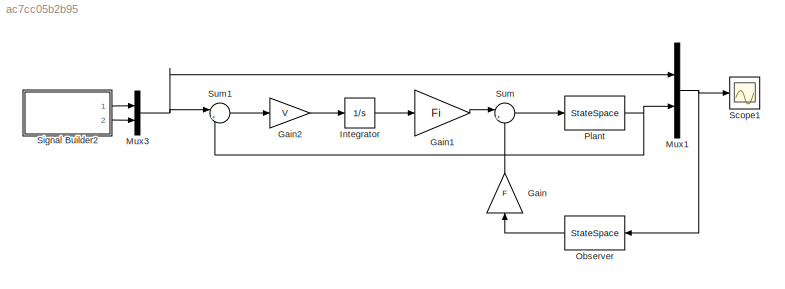
MODEL slx_ac7cc05b2b95
KIND model
CONFIG AbsTol = auto
CONFIG EnableMultiTasking = on
CONFIG FixedStep = 0.005
CONFIG MaxStep = auto
CONFIG MinStep = auto
CONFIG RelTol = 1e-3
CONFIG SampleTimeConstraint = Unconstrained
CONFIG Solver = ode45
CONFIG SolverName = ode45
CONFIG StartTime = 0.0
CONFIG StopTime = 15
BLOCK [Gain] Gain
  Gain = F
  Multiplication = Matrix(K*u)
  NameLocation = right
BLOCK [Gain] Gain1
  Gain = Fi
  Multiplication = Matrix(K*u)
BLOCK [Gain] Gain2
  Gain = V
  Multiplication = Matrix(K*u)
BLOCK [Integrator] Integrator
  Ports = [1, 1]
BLOCK [Mux] Mux1
  DisplayOption = bar
  Inputs = 2
  Ports = [2, 1]
BLOCK [Mux] Mux3
  DisplayOption = bar
  Inputs = 2
  Ports = [2, 1]
BLOCK [StateSpace] Observer
  A = A_obsv
  B = B_obsv
  C = C_obsv
  D = D_obsv
  InitialCondition = 0
  NameLocation = top
  Ports = [1, 1]
BLOCK [StateSpace] Plant
  A = sys_cl_int.A
  B = sys_cl_int.B
  C = sys_cl_int.C
  D = sys_cl_int.D
  InitialCondition = 0
  NameLocation = top
  Ports = [1, 1]
BLOCK [Scope] Scope1
  Floating = off
  NumInputPorts = 1
  Ports = [1]
  ScopeSpecificationString = Simulink.scopes.TimeScopeBlockCfg('CurrentConfiguration', extmgr.ConfigurationSet(extmgr.Configuration('Core','General UI',true),extmgr.Configuration('Core','Source UI',true),extmgr.Configuration('Sources','WiredSimulink',true,'DataLogging',true,'DataLoggingVariableName','data','DataLoggingSaveFormat','Array','DataLoggingDecimation','1','DataLoggingDecimateData',true),extmgr.Configuration('Visuals...<+1542ch>
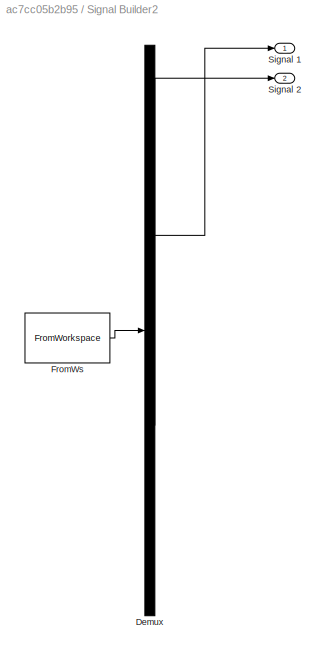
BLOCK [SubSystem] Signal Builder2
  ClipboardFcn = sigbuilder_block('clipboard');
  CloseFcn = sigbuilder_block('close');
  ContinueFcn = sigbuilder_block('continue');
  CopyFcn = sigbuilder_block('copy');
  DeleteFcn = sigbuilder_block('delete');
  LoadFcn = sigbuilder_block('load');
  MaskHideContents = on
  ModelCloseFcn = sigbuilder_block('modelClose');
  NameChangeFcn = sigbuilder_block('namechange');
  OpenFcn = sigbuilder_block('open',[67.5 103.5 558 348.75 ]);
  PauseFcn = sigbuilder_block('pause');
  Ports = [0, 2]
  PreSaveFcn = sigbuilder_block('preSave');
  RequestExecContextInheritance = off
  StartFcn = sigbuilder_block('start');
  StopFcn = sigbuilder_block('stop');
  Tag = STV Subsys
BLOCK [Demux] Signal Builder2/Demux
  DisplayOption = none
  Outputs = 2
  Ports = [1, 2]
  Tag = STV Demux
BLOCK [FromWorkspace] Signal Builder2/FromWs
  Tag = STV FromWs
  VariableName = tuvar
BLOCK [Outport] Signal Builder2/Signal 1
  Tag = STV Outport
BLOCK [Outport] Signal Builder2/Signal 2
  Port = 2
  Tag = STV Outport
BLOCK [Sum] Sum
  Inputs = |++
  Ports = [2, 1]
BLOCK [Sum] Sum1
  Inputs = |+-
  Ports = [2, 1]
LINE Gain1:1 -> Sum:1
LINE Gain2:1 -> Integrator:1
LINE Gain:1 -> Sum:2
LINE Integrator:1 -> Gain1:1
NET Mux1:1 -> Observer:1, Scope1:1
NET Mux3:1 -> Mux1:1, Sum1:1
LINE Observer:1 -> Gain:1
NET Plant:1 -> Mux1:2, Sum1:2
LINE Signal Builder2:1 -> Mux3:1
LINE Signal Builder2:2 -> Mux3:2
LINE Sum1:1 -> Gain2:1
LINE Sum:1 -> Plant:1
note: NET lines group one-source signal fan-out (src -> all destinations, sorted); 1:1 wires keep LINE
